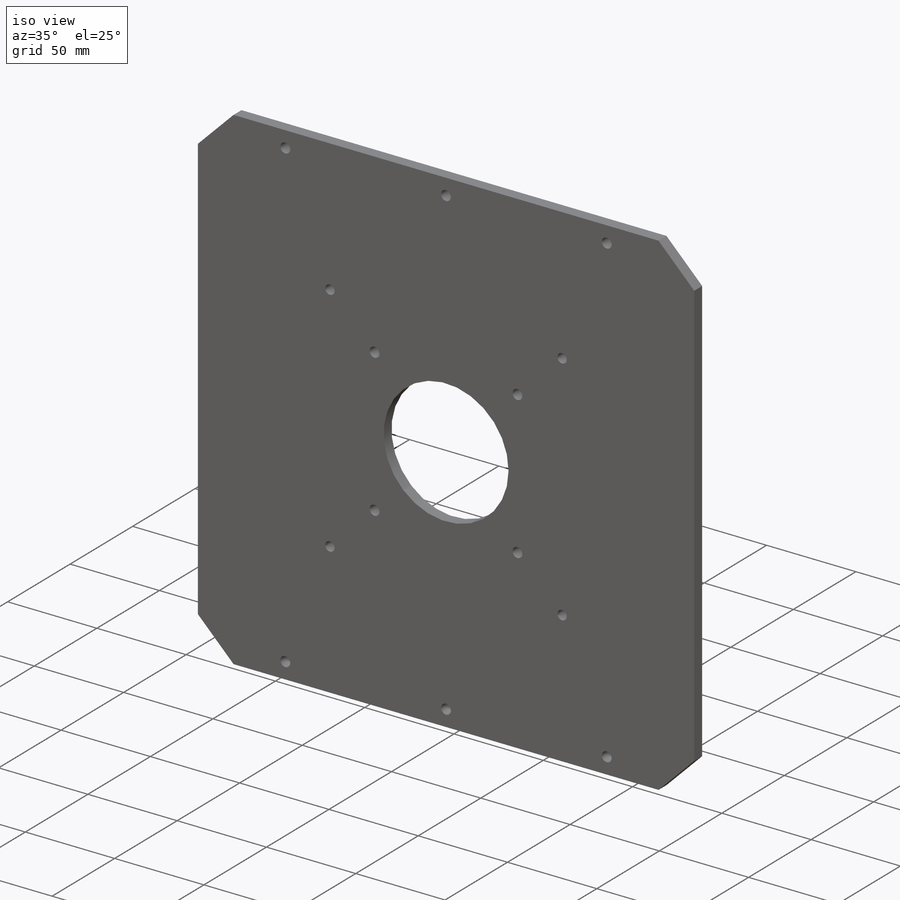
[diagram: iso view]
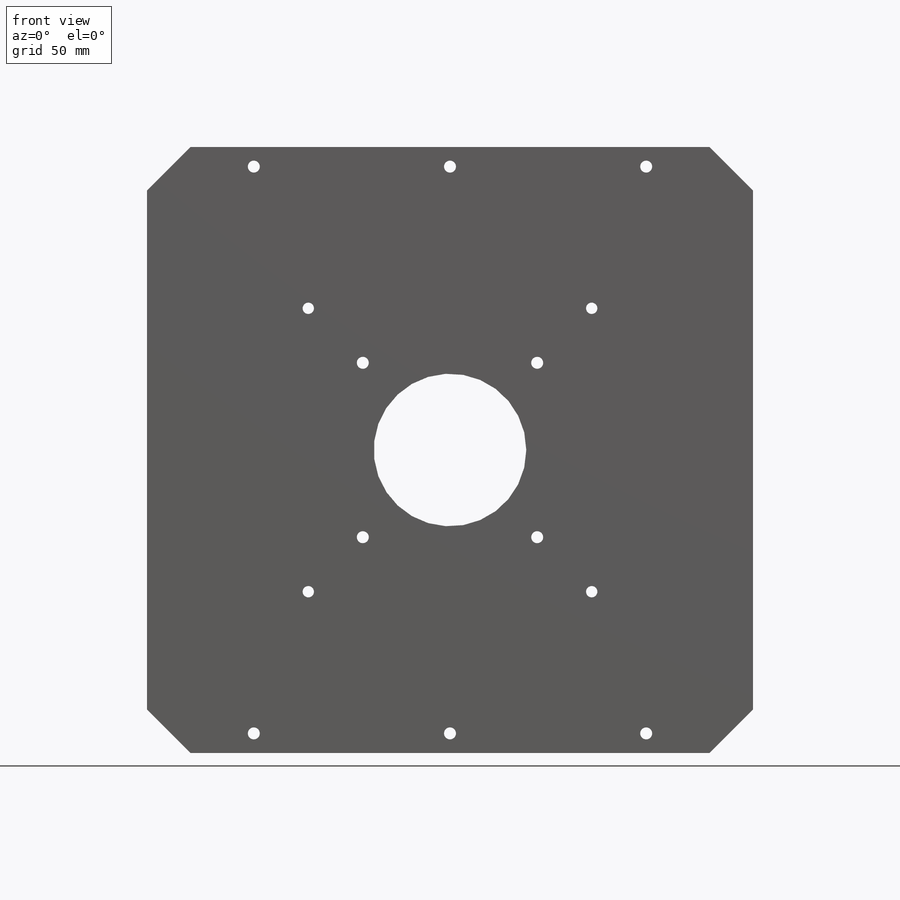
[diagram: front view]
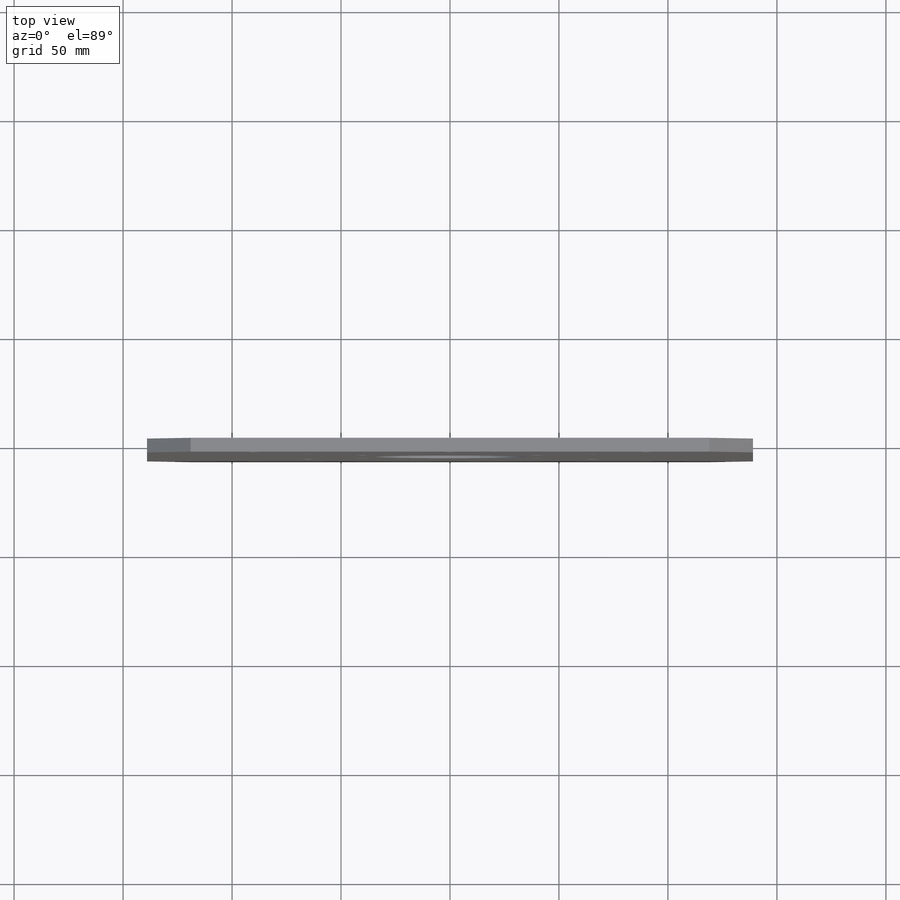
[diagram: top view]
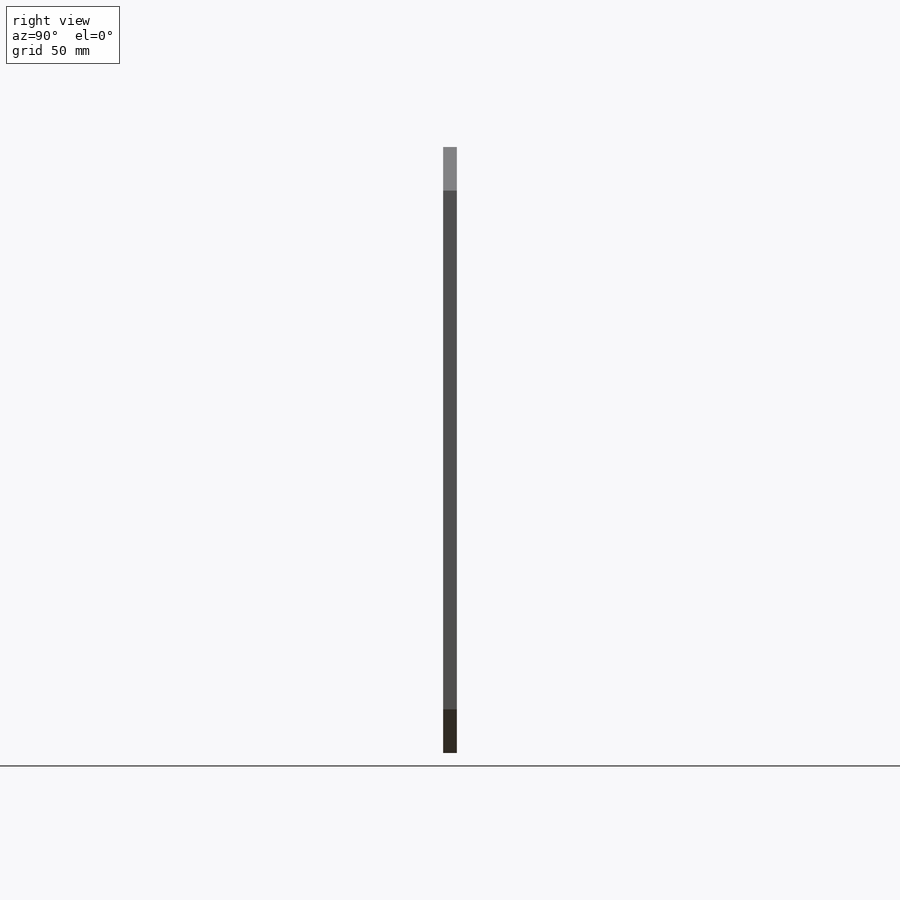
[diagram: right view]
SOLIDWORKS PART (.sldprt)
format: sldprt  version: not decoded by parser v0  size: 224,768 bytes
history: native  units: mm
features: sketch x4, cut_extrude x3, material x1, extrude x1, chamfer x1 (+13 scaffold rows collapsed)
feature tree (23):
  scaffold x13  (default folders/planes/origin — collapsed)
  material  "Material <not specified>"
  sketch  "Sketch1"  dims[D1=278.0mm D2=278.0mm]
  extrude  "Boss-Extrude1"  Depth=6.35mm
  sketch  "Sketch2"  dims[c1.D1=~54.841128mm c1.D2=5.5mm c1.D3=70.0mm c2.D1=40.0mm c2.D4=40.0mm]
  cut_extrude  "Cut-Extrude1"  [1 undecoded]
  chamfer  "Chamfer1"  Distance=20mm Angle=45deg
  sketch  "Sketch4"  dims[c1.D1=5.5mm c1.D2=85.0mm c1.D3=90.0mm c1.D4=~93.292305mm c2.D2=9.0mm]
  cut_extrude  "Cut-Extrude2"  Depth=76.2mm
  sketch  "Sketch6"  dims[c1.D1=5.0mm c1.D3=5.15mm c2.D1=65.0mm c2.D2=65.0mm]
  cut_extrude  "Cut-Extrude4"  [1 undecoded]
decode coverage: 7 of 9 modeling features carry decoded parameters
note: ~ marks probable driven/reference dimensions
note: 2 parameter values undecoded
note: suppression state not decoded; provenance and decode notes live in map.json
